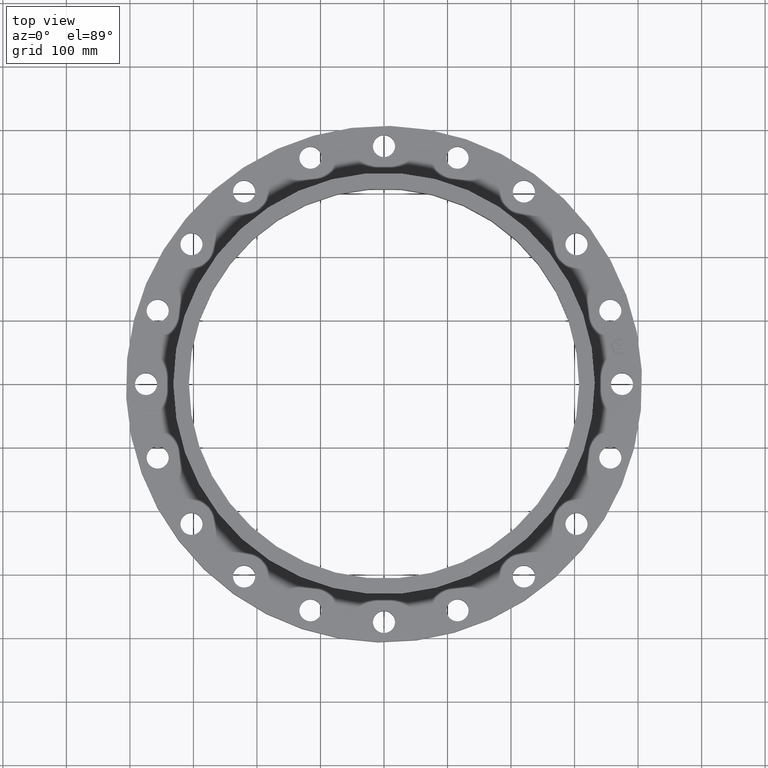
[diagram: clean part render]
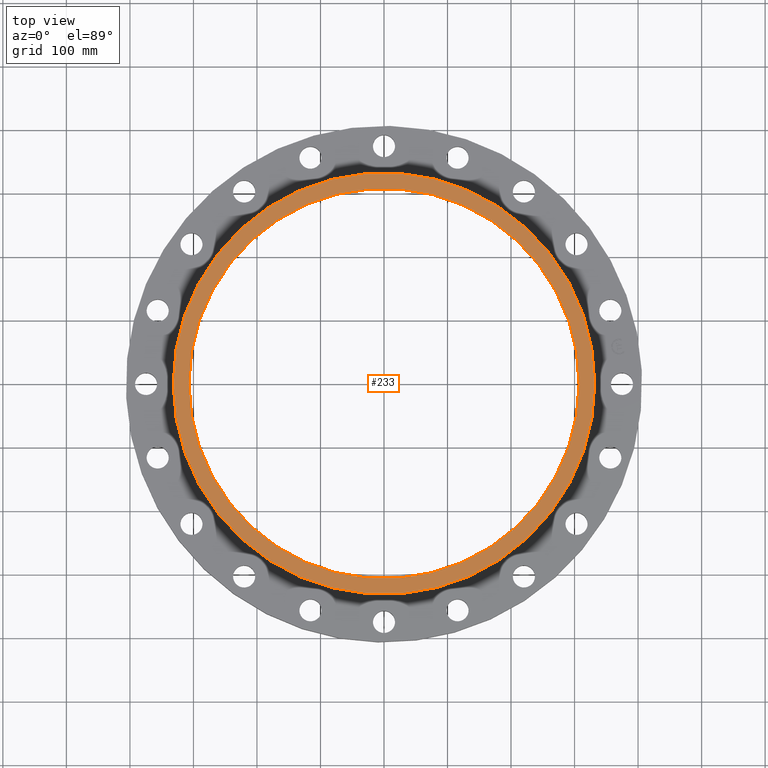
[diagram: same view with one face highlighted and labeled with its STEP entity id]
A machine part, top view. The second image highlights one B-rep face of the part: STEP entity #233.
In plain terms, the highlighted planar face has unit normal (0, 0, 1).
Its self-contained STEP definition (entity closure, byte-faithful):
#179=AXIS2_PLACEMENT_3D('Circle Axis2P3D',#177,#178,$) ;
#196=AXIS2_PLACEMENT_3D('Circle Axis2P3D',#194,#195,$) ;
#209=AXIS2_PLACEMENT_3D('Plane Axis2P3D',#206,#207,#208) ;
#213=AXIS2_PLACEMENT_3D('Circle Axis2P3D',#211,#212,$) ;
#222=AXIS2_PLACEMENT_3D('Circle Axis2P3D',#220,#221,$) ;
#160=CARTESIAN_POINT('Vertex',(10.6143610861,-5.79865188944,3.25000000001)) ;
#174=CARTESIAN_POINT('Vertex',(-10.6143610861,5.79865188944,3.25000000001)) ;
#177=CARTESIAN_POINT('Axis2P3D Location',(-6.64385432059E-016,-2.09805925913E-016,3.25000000001)) ;
#194=CARTESIAN_POINT('Axis2P3D Location',(-6.64385432059E-016,-2.09805925913E-016,3.25000000001)) ;
#206=CARTESIAN_POINT('Axis2P3D Location',(0.,0.,3.25000000001)) ;
#211=CARTESIAN_POINT('Axis2P3D Location',(0.,0.,3.25000000001)) ;
#215=CARTESIAN_POINT('Vertex',(-11.4634222147,-6.26249609804,3.25000000001)) ;
#217=CARTESIAN_POINT('Vertex',(11.4634222147,6.26249609804,3.25000000001)) ;
#220=CARTESIAN_POINT('Axis2P3D Location',(0.,0.,3.25000000001)) ;
#178=DIRECTION('Axis2P3D Direction',(0.,-0.,-0.0393700787402)) ;
#195=DIRECTION('Axis2P3D Direction',(0.,-0.,-0.0393700787402)) ;
#207=DIRECTION('Axis2P3D Direction',(0.,0.,0.0393700787402)) ;
#208=DIRECTION('Axis2P3D XDirection',(0.0393700787402,0.,0.)) ;
#212=DIRECTION('Axis2P3D Direction',(0.,0.,0.0393700787402)) ;
#221=DIRECTION('Axis2P3D Direction',(0.,0.,0.0393700787402)) ;
#226=ORIENTED_EDGE('',*,*,#219,.T.) ;
#227=ORIENTED_EDGE('',*,*,#224,.T.) ;
#230=ORIENTED_EDGE('',*,*,#181,.F.) ;
#231=ORIENTED_EDGE('',*,*,#198,.F.) ;
#232=FACE_BOUND('',#229,.T.) ;
#233=ADVANCED_FACE('PartBody',(#228,#232),#210,.T.) ;
#180=CIRCLE('generated circle',#179,12.095) ;
#197=CIRCLE('generated circle',#196,12.095) ;
#214=CIRCLE('generated circle',#213,13.0625000001) ;
#223=CIRCLE('generated circle',#222,13.0625000001) ;
#181=EDGE_CURVE('',#175,#161,#180,.F.) ;
#198=EDGE_CURVE('',#161,#175,#197,.F.) ;
#219=EDGE_CURVE('',#216,#218,#214,.T.) ;
#224=EDGE_CURVE('',#218,#216,#223,.T.) ;
#225=EDGE_LOOP('',(#226,#227)) ;
#229=EDGE_LOOP('',(#230,#231)) ;
#228=FACE_OUTER_BOUND('',#225,.T.) ;
#210=PLANE('',#209) ;
#161=VERTEX_POINT('',#160) ;
#175=VERTEX_POINT('',#174) ;
#216=VERTEX_POINT('',#215) ;
#218=VERTEX_POINT('',#217) ;